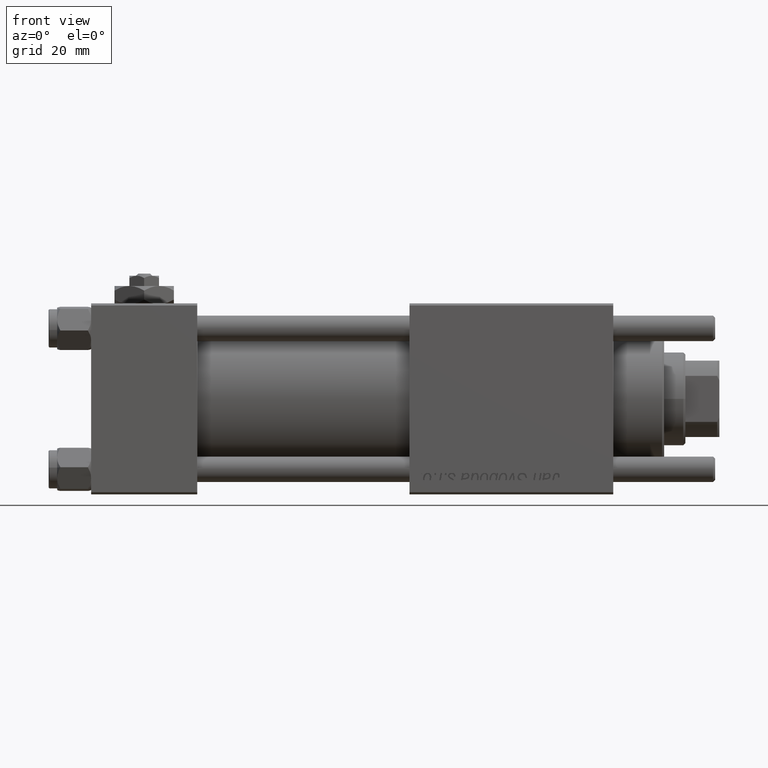
[diagram: clean part render]
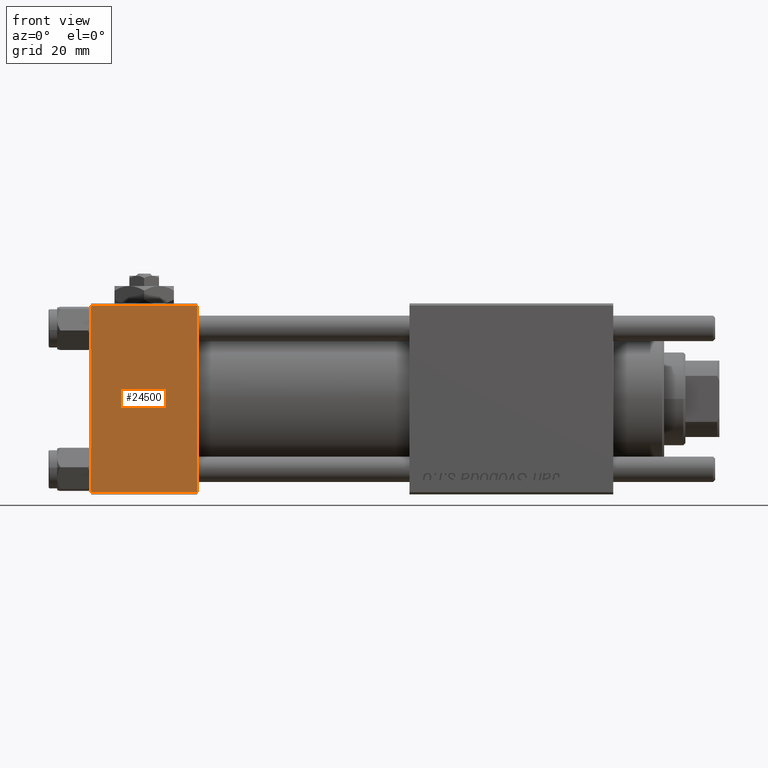
[diagram: same view with one face highlighted and labeled with its STEP entity id]
A machine part, front view. The second image highlights one B-rep face of the part: STEP entity #24500.
In plain terms, the highlighted planar face has unit normal (0, 1, 0).
Its self-contained STEP definition (entity closure, byte-faithful):
#263 = VECTOR ( 'NONE', #57527, 1000.000000000000000 ) ;
#2139 = LINE ( 'NONE', #46554, #46484 ) ;
#2680 = EDGE_CURVE ( 'NONE', #54797, #30424, #4966, .T. ) ;
#3694 = ORIENTED_EDGE ( 'NONE', *, *, #46597, .T. ) ;
#4419 = CARTESIAN_POINT ( 'NONE',  ( 0.000000000000000000, -22.50000000000000000, 22.00000000000000000 ) ) ;
#4966 = LINE ( 'NONE', #40214, #9720 ) ;
#5291 = CARTESIAN_POINT ( 'NONE',  ( 25.00000000000000000, -22.50000000000000000, 22.00000000000000000 ) ) ;
#5394 = ORIENTED_EDGE ( 'NONE', *, *, #42028, .F. ) ;
#8753 = FACE_OUTER_BOUND ( 'NONE', #20437, .T. ) ;
#9049 = CARTESIAN_POINT ( 'NONE',  ( 25.00000000000000000, -22.50000000000000000, 22.50000000000000000 ) ) ;
#9720 = VECTOR ( 'NONE', #22153, 1000.000000000000000 ) ;
#11868 = ORIENTED_EDGE ( 'NONE', *, *, #2680, .T. ) ;
#13177 = CARTESIAN_POINT ( 'NONE',  ( 25.00000000000000000, -22.50000000000000000, -21.99999999999997158 ) ) ;
#13822 = EDGE_CURVE ( 'NONE', #42029, #16220, #28219, .T. ) ;
#14379 = PLANE ( 'NONE',  #50704 ) ;
#15469 = DIRECTION ( 'NONE',  ( 0.000000000000000000, 0.000000000000000000, -1.000000000000000000 ) ) ;
#16220 = VERTEX_POINT ( 'NONE', #13177 ) ;
#20336 = VECTOR ( 'NONE', #23756, 1000.000000000000000 ) ;
#20437 = EDGE_LOOP ( 'NONE', ( #3694, #55168, #5394, #11868 ) ) ;
#22153 = DIRECTION ( 'NONE',  ( -1.000000000000000000, 0.000000000000000000, 0.000000000000000000 ) ) ;
#23252 = DIRECTION ( 'NONE',  ( -0.000000000000000000, 1.000000000000000000, 0.000000000000000000 ) ) ;
#23756 = DIRECTION ( 'NONE',  ( 1.000000000000000000, 0.000000000000000000, 0.000000000000000000 ) ) ;
#24500 = ADVANCED_FACE ( 'NONE', ( #8753 ), #14379, .F. ) ;
#25859 = CARTESIAN_POINT ( 'NONE',  ( 0.000000000000000000, -22.50000000000000000, 22.50000000000000000 ) ) ;
#28219 = LINE ( 'NONE', #36780, #20336 ) ;
#30424 = VERTEX_POINT ( 'NONE', #4419 ) ;
#35989 = DIRECTION ( 'NONE',  ( 0.000000000000000000, -0.000000000000000000, 1.000000000000000000 ) ) ;
#36780 = CARTESIAN_POINT ( 'NONE',  ( 25.00000000000000000, -22.50000000000000000, -21.99999999999998579 ) ) ;
#40214 = CARTESIAN_POINT ( 'NONE',  ( 25.00000000000000000, -22.50000000000000000, 22.00000000000000000 ) ) ;
#42028 = EDGE_CURVE ( 'NONE', #54797, #16220, #2139, .T. ) ;
#42029 = VERTEX_POINT ( 'NONE', #56314 ) ;
#46484 = VECTOR ( 'NONE', #15469, 1000.000000000000000 ) ;
#46554 = CARTESIAN_POINT ( 'NONE',  ( 25.00000000000000000, -22.50000000000000000, 22.50000000000000000 ) ) ;
#46597 = EDGE_CURVE ( 'NONE', #30424, #42029, #53939, .T. ) ;
#50704 = AXIS2_PLACEMENT_3D ( 'NONE', #9049, #23252, #35989 ) ;
#53939 = LINE ( 'NONE', #25859, #263 ) ;
#54797 = VERTEX_POINT ( 'NONE', #5291 ) ;
#55168 = ORIENTED_EDGE ( 'NONE', *, *, #13822, .T. ) ;
#56314 = CARTESIAN_POINT ( 'NONE',  ( 0.000000000000000000, -22.50000000000000000, -21.99999999999997158 ) ) ;
#57527 = DIRECTION ( 'NONE',  ( 0.000000000000000000, 0.000000000000000000, -1.000000000000000000 ) ) ;